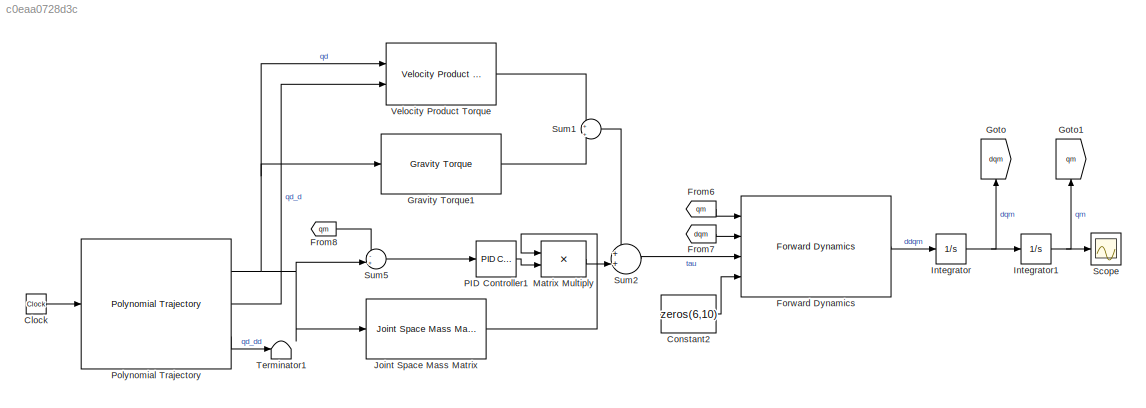
MODEL slx_c0eaa0728d3c
KIND model
CONFIG AbsTol = auto
CONFIG EnableMultiTasking = off
CONFIG FixedStep = auto
CONFIG MaxStep = auto
CONFIG MinStep = auto
CONFIG RelTol = 1e-3
CONFIG SampleTimeConstraint = Unconstrained
CONFIG SolverName = VariableStepAuto
CONFIG StartTime = 0.0
CONFIG StopTime = 10.0
BLOCK [Clock] Clock
BLOCK [Constant] Constant2
  Value = zeros(6,10)
BLOCK [Reference] Forward Dynamics  REF=robotmaniplib/Forward Dynamics
  Ports = [4, 1]
  SourceBlock = robotmaniplib/Forward Dynamics
  SourceProductBaseCode = RO
  SourceType = Forward Dynamics
BLOCK [From] From6
  GotoTag = qm
BLOCK [From] From7
  GotoTag = dqm
BLOCK [From] From8
  GotoTag = qm
BLOCK [Goto] Goto
  GotoTag = dqm
  NameLocation = right
BLOCK [Goto] Goto1
  GotoTag = qm
  NameLocation = right
BLOCK [Reference] Gravity Torque1  REF=robotmaniplib/Gravity Torque
  Ports = [1, 1]
  SourceBlock = robotmaniplib/Gravity Torque
  SourceProductBaseCode = RO
  SourceType = Gravity Torque
BLOCK [Integrator] Integrator
  Ports = [1, 1]
BLOCK [Integrator] Integrator1
  Ports = [1, 1]
BLOCK [Reference] Joint Space Mass Matrix  REF=robotmaniplib/Joint Space Mass Matrix
  Ports = [1, 1]
  SourceBlock = robotmaniplib/Joint Space Mass Matrix
  SourceProductBaseCode = RO
  SourceType = Joint Space Mass Matrix
BLOCK [Product] Matrix Multiply
  Multiplication = Matrix(*)
  Ports = [2, 1]
BLOCK [Reference] PID Controller1  REF=pid_lib/PID Controller
  Ports = [1, 1]
  SourceBlock = pid_lib/PID Controller
  SourceProductBaseCode = SL
  SourceType = PID 1dof
BLOCK [Reference] Polynomial Trajectory  REF=robotcorelib/Polynomial Trajectory
  Ports = [1, 3]
  SourceBlock = robotcorelib/Polynomial Trajectory
  SourceProductBaseCode = NV,RO,RR,UV
  SourceType = robotics.slcore.internal.block.PolyTrajSys
BLOCK [Scope] Scope
  Floating = off
  NumInputPorts = 1
  Ports = [1]
  ScopeSpecificationString = Simulink.scopes.TimeScopeBlockCfg('CurrentConfiguration', extmgr.ConfigurationSet(extmgr.Configuration('Core','General UI',true),extmgr.Configuration('Core','Source UI',true),extmgr.Configuration('Sources','WiredSimulink',true),extmgr.Configuration('Visuals','Time Domain',true),extmgr.Configuration('Tools','Plot Navigation',true),extmgr.Configuration('Tools','Measurements',true)),'Version','2021a'...<+1ch>
BLOCK [Sum] Sum1
  Inputs = +|+
  Ports = [2, 1]
BLOCK [Sum] Sum2
  Inputs = ++|
  Ports = [2, 1]
BLOCK [Sum] Sum5
  Inputs = -+|
  Ports = [2, 1]
BLOCK [Terminator] Terminator1
BLOCK [Reference] Velocity Product Torque  REF=robotmaniplib/Velocity Product Torque
  Ports = [2, 1]
  SourceBlock = robotmaniplib/Velocity Product Torque
  SourceProductBaseCode = RO
  SourceType = Velocity Product Torque
LINE Clock:1 -> Polynomial Trajectory:1
LINE Constant2:1 -> Forward Dynamics:4
LINE Forward Dynamics:1 -> Integrator:1
LINE From6:1 -> Forward Dynamics:1
LINE From7:1 -> Forward Dynamics:2
LINE From8:1 -> Sum5:1
LINE Gravity Torque1:1 -> Sum1:2
NET Integrator1:1 -> Goto1:1, Scope:1
NET Integrator:1 -> Goto:1, Integrator1:1
LINE Joint Space Mass Matrix:1 -> Matrix Multiply:1
LINE Matrix Multiply:1 -> Sum2:2
LINE PID Controller1:1 -> Matrix Multiply:2
NET Polynomial Trajectory:1 -> Gravity Torque1:1, Joint Space Mass Matrix:1, Sum5:2, Velocity Product Torque:1
LINE Polynomial Trajectory:2 -> Velocity Product Torque:2
LINE Polynomial Trajectory:3 -> Terminator1:1
LINE Sum1:1 -> Sum2:1
LINE Sum2:1 -> Forward Dynamics:3
LINE Sum5:1 -> PID Controller1:1
LINE Velocity Product Torque:1 -> Sum1:1
note: NET lines group one-source signal fan-out (src -> all destinations, sorted); 1:1 wires keep LINE
